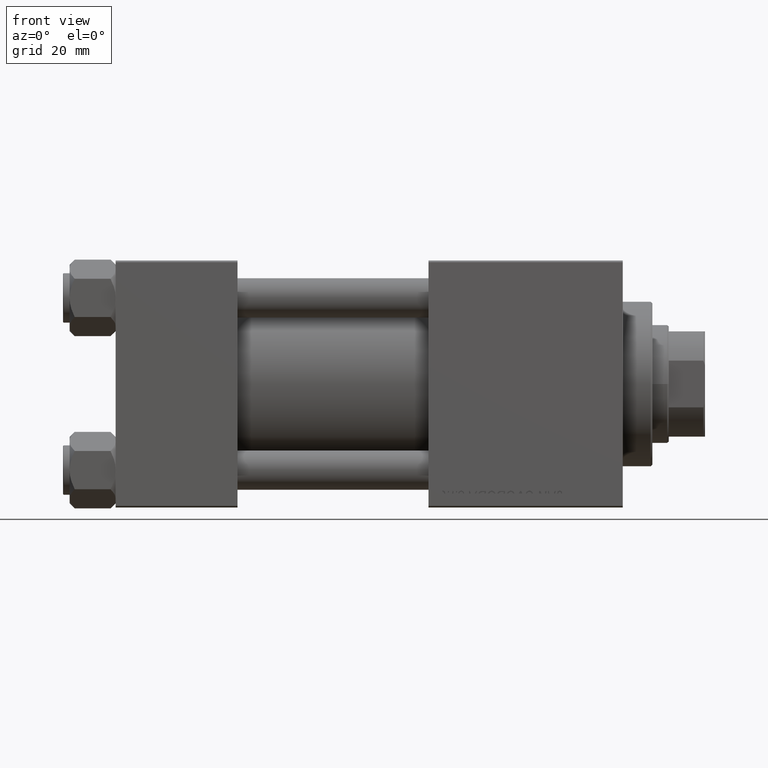
[diagram: clean part render]
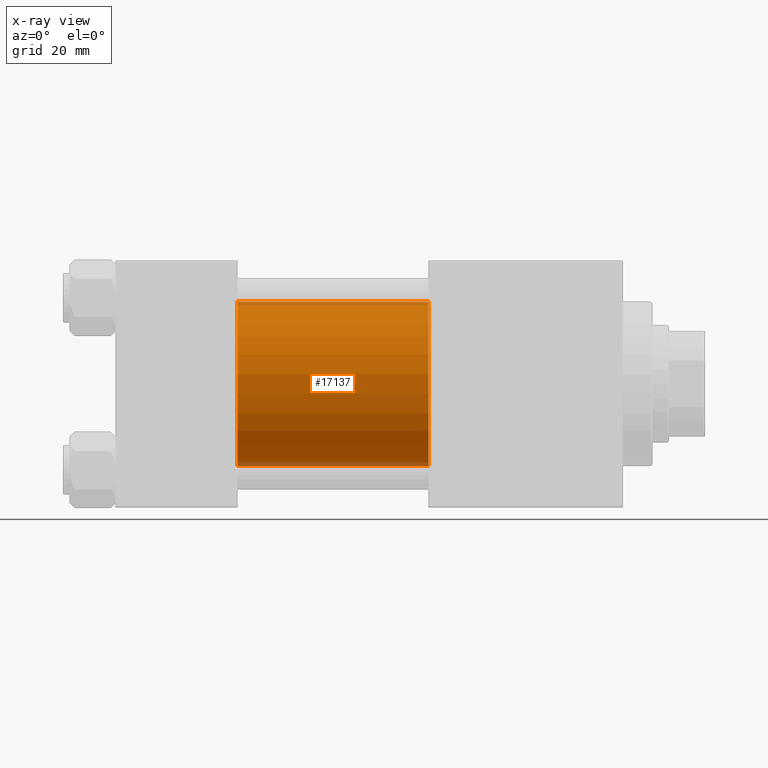
[diagram: x-ray — body ghosted, one internal face saturated and labeled with its STEP entity id]
A machine part, front view, then the same camera in x-ray: the body is ghosted and one INTERNAL B-rep face — a face not visible from any outside direction — is saturated and labeled: STEP entity #17137.
In plain terms, the highlighted cylindrical surface (partial cylindrical patch) has radius 25 mm, axis along (-1, -0, -0).
Its self-contained STEP definition (entity closure, byte-faithful):
#2033 = AXIS2_PLACEMENT_3D ( 'NONE', #10563, #33938, #22244 ) ;
#2261 = VERTEX_POINT ( 'NONE', #11431 ) ;
#6126 = EDGE_CURVE ( 'NONE', #42780, #2261, #23779, .T. ) ;
#6550 = VECTOR ( 'NONE', #31916, 1000.000000000000000 ) ;
#6836 = CARTESIAN_POINT ( 'NONE',  ( 95.00000000000000000, -2.602085213965210642E-15, 25.00000000000000000 ) ) ;
#7226 = EDGE_CURVE ( 'NONE', #2261, #9270, #49542, .T. ) ;
#7516 = CYLINDRICAL_SURFACE ( 'NONE', #2033, 25.00000000000000000 ) ;
#8839 = CARTESIAN_POINT ( 'NONE',  ( 95.00000000000000000, -2.602085213965210642E-15, 0.000000000000000000 ) ) ;
#9231 = VERTEX_POINT ( 'NONE', #33804 ) ;
#9248 = DIRECTION ( 'NONE',  ( -1.000000000000000000, -0.000000000000000000, -0.000000000000000000 ) ) ;
#9270 = VERTEX_POINT ( 'NONE', #47210 ) ;
#10563 = CARTESIAN_POINT ( 'NONE',  ( 95.00000000000000000, -2.602085213965210642E-15, 0.000000000000000000 ) ) ;
#11431 = CARTESIAN_POINT ( 'NONE',  ( 37.00000000000000000, -2.602085213965210642E-15, 25.00000000000000000 ) ) ;
#16519 = EDGE_CURVE ( 'NONE', #9231, #9270, #28313, .T. ) ;
#17137 = ADVANCED_FACE ( 'NONE', ( #42047 ), #7516, .F. ) ;
#18998 = AXIS2_PLACEMENT_3D ( 'NONE', #8839, #19518, #23815 ) ;
#19518 = DIRECTION ( 'NONE',  ( 1.000000000000000000, 0.000000000000000000, 0.000000000000000000 ) ) ;
#19781 = CIRCLE ( 'NONE', #18998, 25.00000000000000000 ) ;
#20738 = CARTESIAN_POINT ( 'NONE',  ( 95.00000000000000000, -2.602085213965210642E-15, 25.00000000000000000 ) ) ;
#21093 = ORIENTED_EDGE ( 'NONE', *, *, #6126, .F. ) ;
#22244 = DIRECTION ( 'NONE',  ( 0.000000000000000000, 0.000000000000000000, 1.000000000000000000 ) ) ;
#23103 = DIRECTION ( 'NONE',  ( 0.000000000000000000, 0.000000000000000000, -1.000000000000000000 ) ) ;
#23779 = LINE ( 'NONE', #20738, #6550 ) ;
#23815 = DIRECTION ( 'NONE',  ( 0.000000000000000000, 0.000000000000000000, -1.000000000000000000 ) ) ;
#28313 = LINE ( 'NONE', #39970, #40870 ) ;
#28832 = EDGE_LOOP ( 'NONE', ( #42814, #44613, #35523, #21093 ) ) ;
#31916 = DIRECTION ( 'NONE',  ( -1.000000000000000000, -0.000000000000000000, -0.000000000000000000 ) ) ;
#33804 = CARTESIAN_POINT ( 'NONE',  ( 95.00000000000000000, 4.595317839031718093E-16, -25.00000000000000000 ) ) ;
#33938 = DIRECTION ( 'NONE',  ( -1.000000000000000000, -0.000000000000000000, -0.000000000000000000 ) ) ;
#35034 = DIRECTION ( 'NONE',  ( 1.000000000000000000, 0.000000000000000000, 0.000000000000000000 ) ) ;
#35523 = ORIENTED_EDGE ( 'NONE', *, *, #7226, .F. ) ;
#39645 = EDGE_CURVE ( 'NONE', #42780, #9231, #19781, .T. ) ;
#39970 = CARTESIAN_POINT ( 'NONE',  ( 95.00000000000000000, 4.595317839031718093E-16, -25.00000000000000000 ) ) ;
#40870 = VECTOR ( 'NONE', #9248, 1000.000000000000000 ) ;
#42047 = FACE_OUTER_BOUND ( 'NONE', #28832, .T. ) ;
#42780 = VERTEX_POINT ( 'NONE', #6836 ) ;
#42814 = ORIENTED_EDGE ( 'NONE', *, *, #39645, .T. ) ;
#43038 = AXIS2_PLACEMENT_3D ( 'NONE', #43139, #35034, #23103 ) ;
#43139 = CARTESIAN_POINT ( 'NONE',  ( 37.00000000000000000, -2.602085213965210642E-15, 0.000000000000000000 ) ) ;
#44613 = ORIENTED_EDGE ( 'NONE', *, *, #16519, .T. ) ;
#47210 = CARTESIAN_POINT ( 'NONE',  ( 37.00000000000000000, 4.595317839031718093E-16, -25.00000000000000000 ) ) ;
#49542 = CIRCLE ( 'NONE', #43038, 25.00000000000000000 ) ;